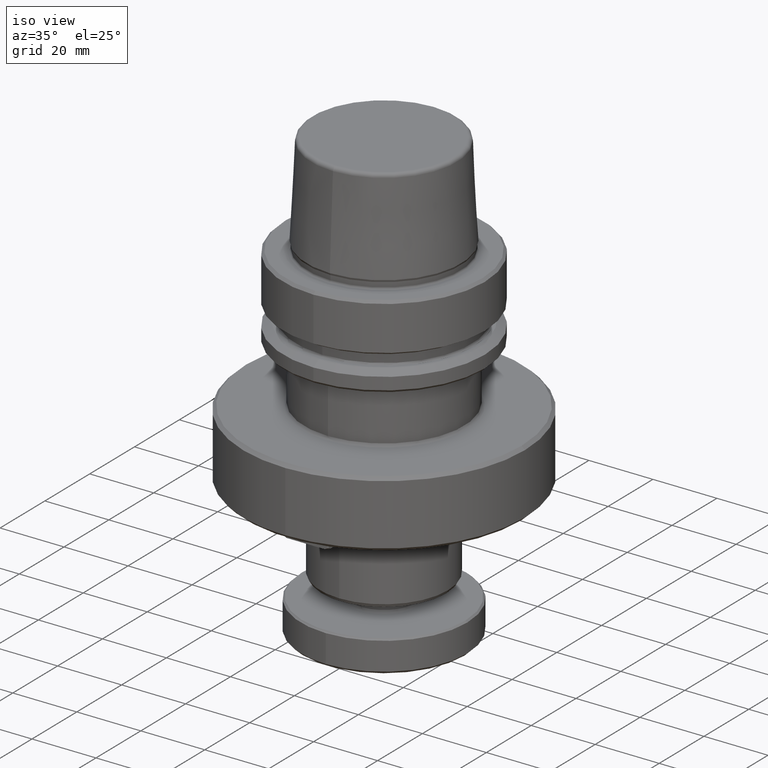
[diagram: clean part render]
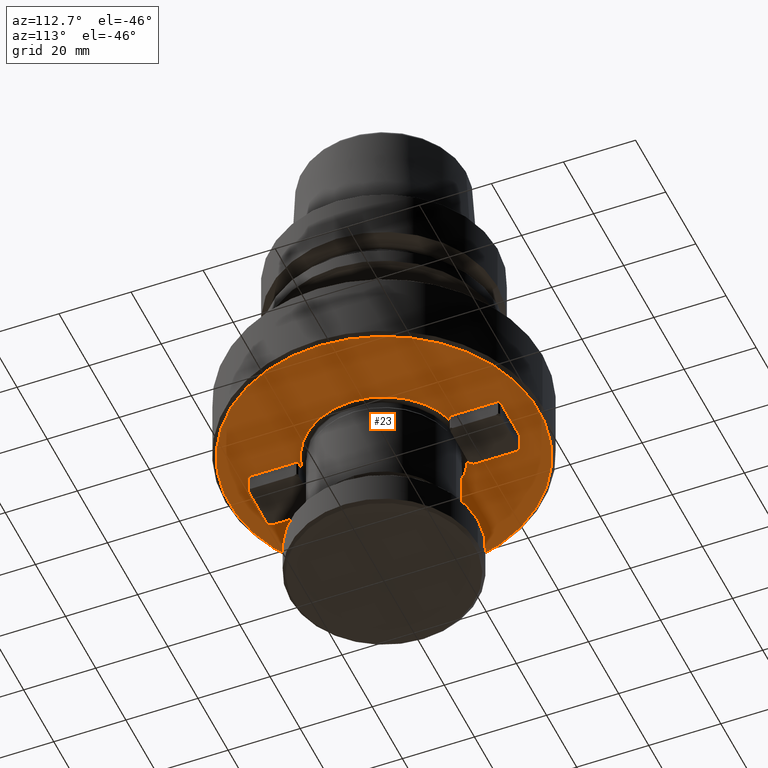
[diagram: tour spotlight — one face highlighted and labeled with its STEP entity id]
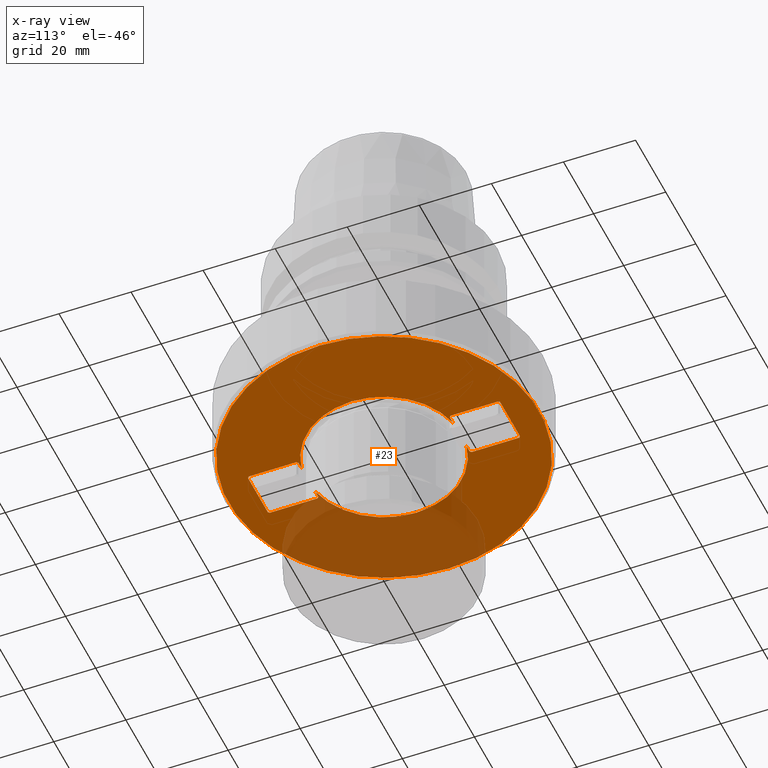
[diagram: x-ray of the same camera — body ghosted, this tour face saturated]
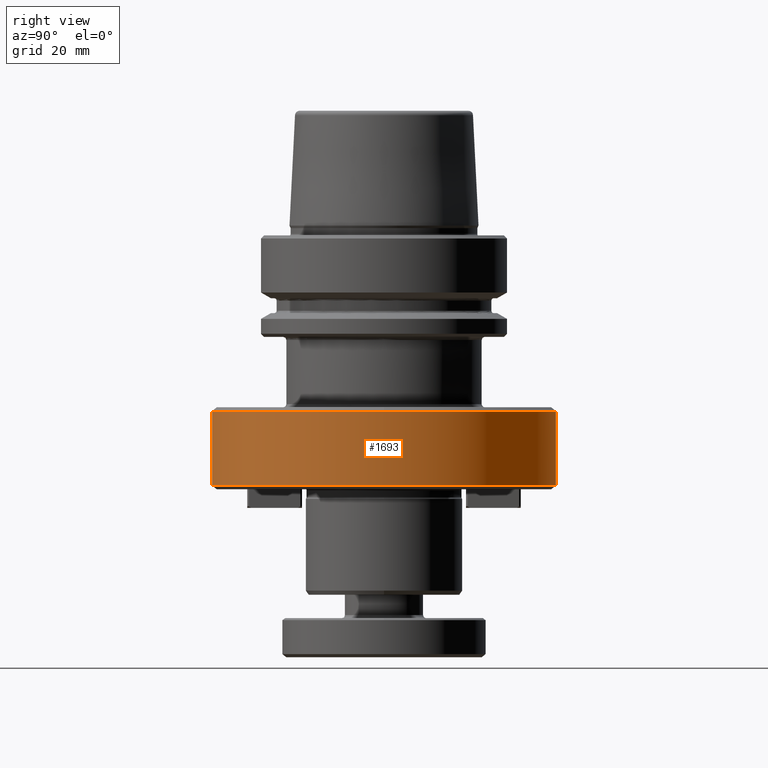
[diagram: tour spotlight — one face highlighted and labeled with its STEP entity id]
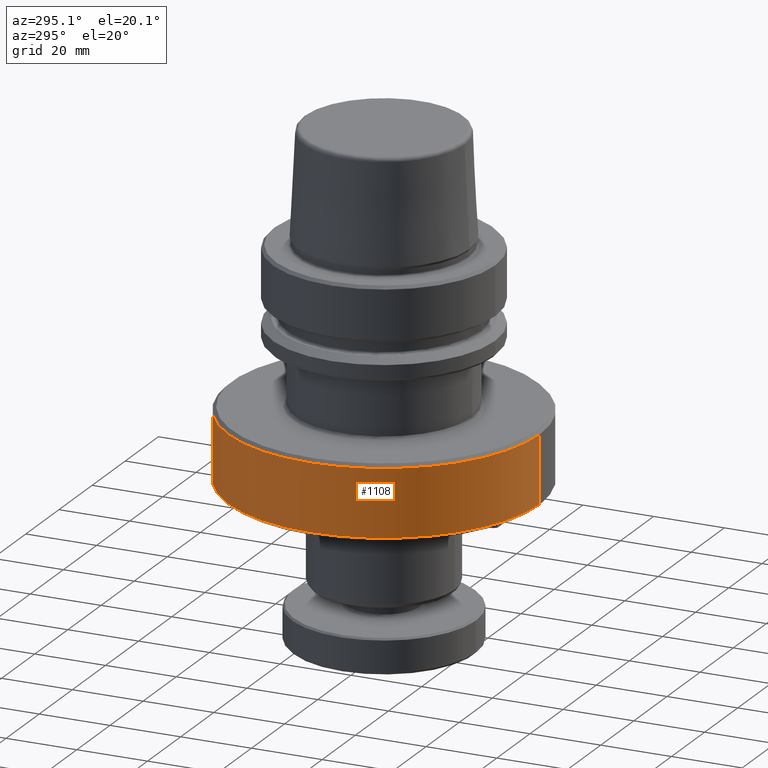
[diagram: tour spotlight — one face highlighted and labeled with its STEP entity id]
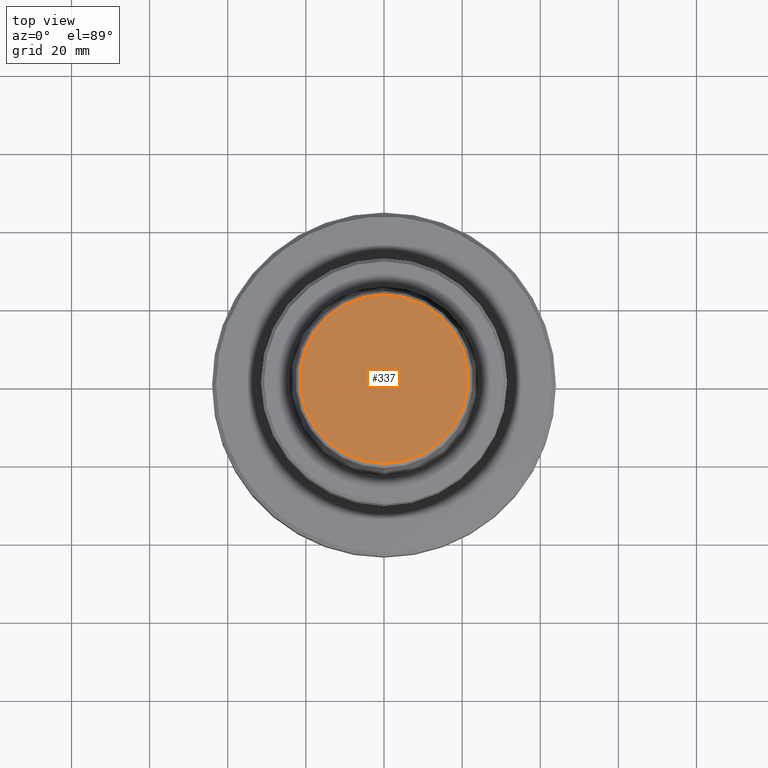
[diagram: tour spotlight — one face highlighted and labeled with its STEP entity id]
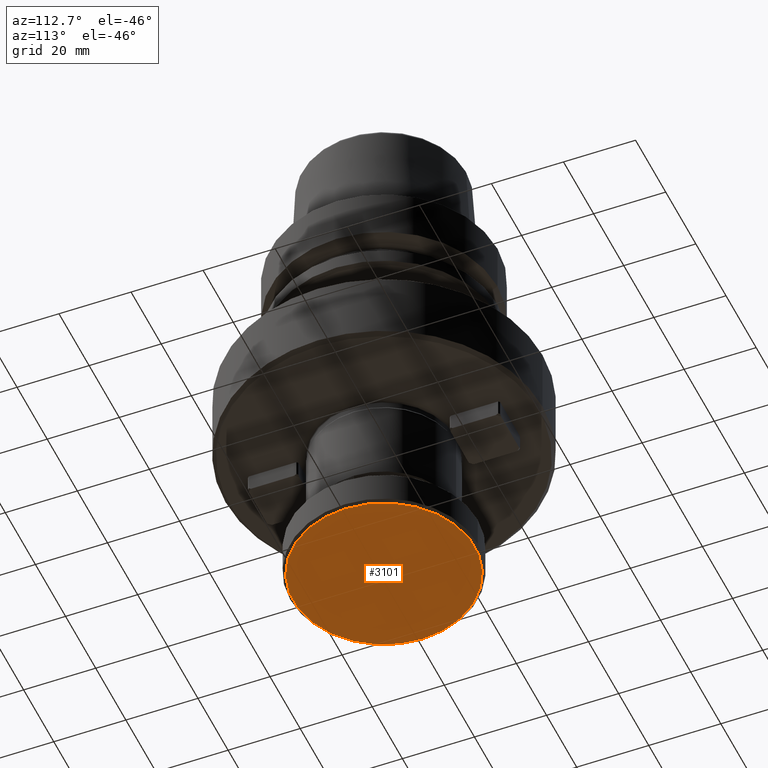
[diagram: tour spotlight — one face highlighted and labeled with its STEP entity id]
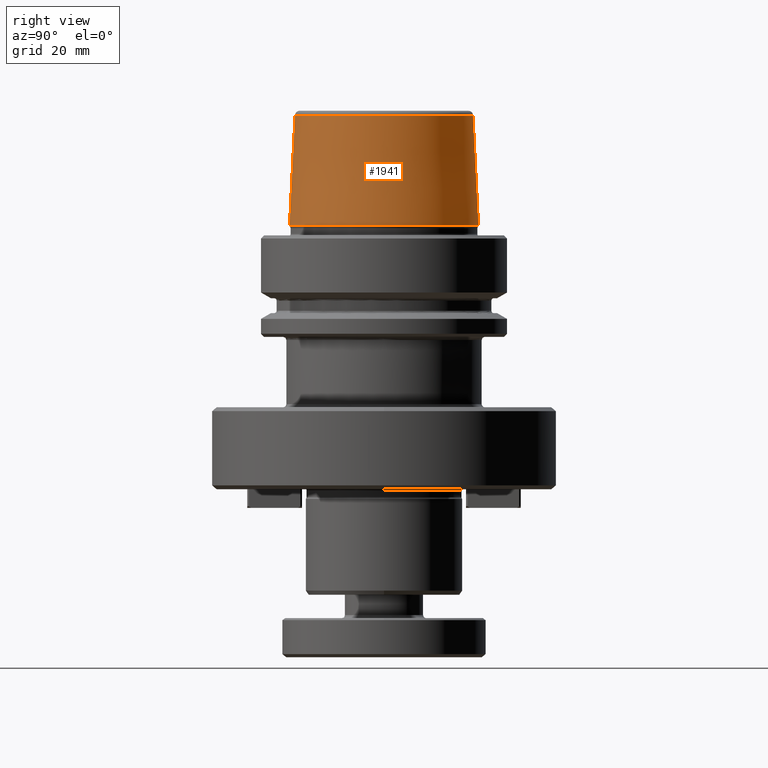
[diagram: tour spotlight — one face highlighted and labeled with its STEP entity id]
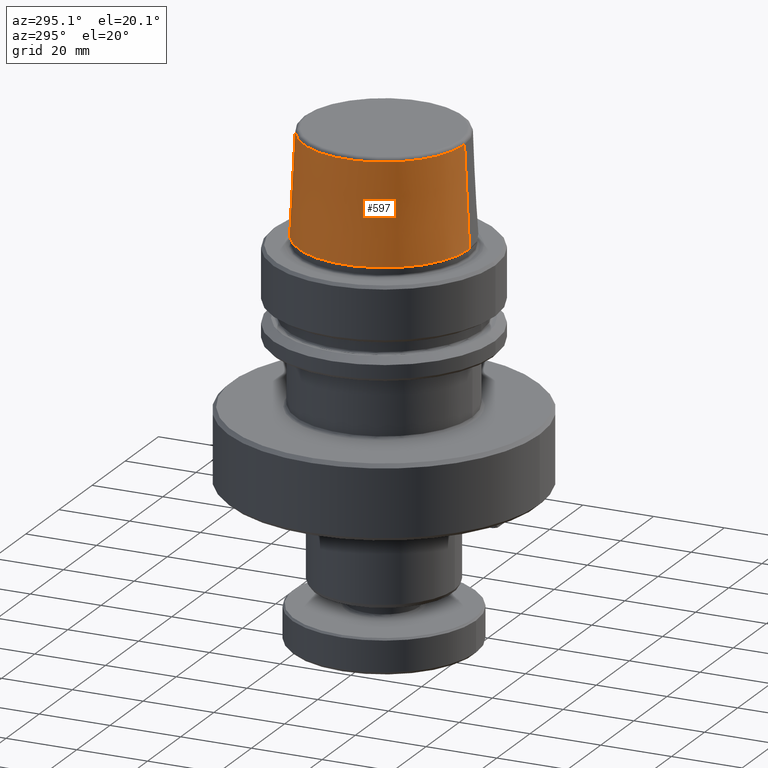
[diagram: tour spotlight — one face highlighted and labeled with its STEP entity id]
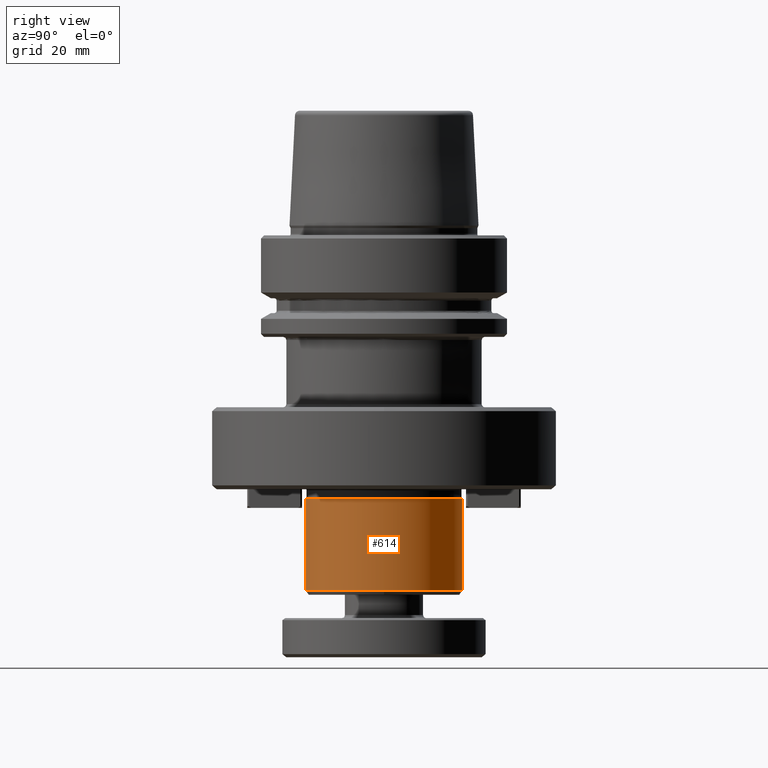
[diagram: tour spotlight — one face highlighted and labeled with its STEP entity id]
A machine part: a face-by-face anatomy tour. The part has 102 B-rep faces; the first image is the clean iso view, then the 8 largest visible faces are spotlighted one at a time (largest first), each with its STEP entity span.

Face 1 — auxiliary view, entity #23. An x-ray twin of the same camera follows (body ghosted, this face saturated) — the face is partly hidden behind the body. In plain terms, the highlighted planar face has unit normal (0, 0, -1).
Definition (entity closure, byte-faithful):
#13 = DIRECTION ( 'NONE',  ( -0.0000000000000000000, -1.000000000000000000, -5.566576359760684800E-018 ) ) ;
#21 = CARTESIAN_POINT ( 'NONE',  ( -4.515573053334458500, 21.00000000000000000, -65.00000000000000000 ) ) ;
#23 = ADVANCED_FACE ( 'NONE', ( #2924, #2289 ), #2173, .T. ) ;
#59 = CARTESIAN_POINT ( 'NONE',  ( 0.0000000000000000000, 21.00000000000000000, -65.00000000000000000 ) ) ;
#64 = EDGE_CURVE ( 'NONE', #2636, #226, #3506, .T. ) ;
#70 = DIRECTION ( 'NONE',  ( -0.0000000000000000000, -1.000000000000000000, -5.566576359760684800E-018 ) ) ;
#78 = CARTESIAN_POINT ( 'NONE',  ( -6.599999999999999600, -35.00000000000000000, -65.00000000000000000 ) ) ;
#94 = DIRECTION ( 'NONE',  ( 0.7071067811865483500, -0.7071067811865468000, -0.0000000000000000000 ) ) ;
#114 = EDGE_CURVE ( 'NONE', #2822, #2636, #2681, .T. ) ;
#122 = CIRCLE ( 'NONE', #1024, 21.48000000000000800 ) ;
#129 = VECTOR ( 'NONE', #2325, 1000.000000000000100 ) ;
#132 = VECTOR ( 'NONE', #3347, 1000.000000000000000 ) ;
#135 = DIRECTION ( 'NONE',  ( -0.0000000000000000000, -0.0000000000000000000, 1.000000000000000000 ) ) ;
#145 = VERTEX_POINT ( 'NONE', #1661 ) ;
#153 = DIRECTION ( 'NONE',  ( -0.0000000000000000000, -0.0000000000000000000, 1.000000000000000000 ) ) ;
#180 = CARTESIAN_POINT ( 'NONE',  ( -7.000000000000000000, -21.40000000000000200, -65.00000000000000000 ) ) ;
#187 = ORIENTED_EDGE ( 'NONE', *, *, #2824, .T. ) ;
#225 = EDGE_CURVE ( 'NONE', #2689, #1551, #302, .T. ) ;
#226 = VERTEX_POINT ( 'NONE', #3131 ) ;
#253 = VECTOR ( 'NONE', #2823, 1000.000000000000100 ) ;
#260 = CARTESIAN_POINT ( 'NONE',  ( -6.999999999999995600, 34.60000000000001600, -65.00000000000000000 ) ) ;
#289 = CARTESIAN_POINT ( 'NONE',  ( -7.000000000000000900, 43.00000000000000000, -65.00000000000000000 ) ) ;
#301 = EDGE_CURVE ( 'NONE', #145, #999, #122, .T. ) ;
#302 = LINE ( 'NONE', #3097, #3144 ) ;
#304 = CARTESIAN_POINT ( 'NONE',  ( 0.0000000000000000000, -20.99999999999999600, -65.00000000000000000 ) ) ;
#308 = CARTESIAN_POINT ( 'NONE',  ( 4.515573053334458500, 21.00000000000000000, -65.00000000000000000 ) ) ;
#328 = CARTESIAN_POINT ( 'NONE',  ( 0.0000000000000000000, -20.99999999999999600, -65.00000000000000000 ) ) ;
#334 = VECTOR ( 'NONE', #3004, 1000.000000000000000 ) ;
#348 = VECTOR ( 'NONE', #613, 1000.000000000000000 ) ;
#351 = EDGE_CURVE ( 'NONE', #1958, #2525, #1596, .T. ) ;
#375 = CARTESIAN_POINT ( 'NONE',  ( 6.599999999999999600, 35.00000000000000000, -65.00000000000000000 ) ) ;
#380 = ORIENTED_EDGE ( 'NONE', *, *, #114, .T. ) ;
#387 = VERTEX_POINT ( 'NONE', #1832 ) ;
#395 = LINE ( 'NONE', #1243, #129 ) ;
#415 = CARTESIAN_POINT ( 'NONE',  ( 0.0000000000000000000, 0.0000000000000000000, -65.00000000000000000 ) ) ;
#532 = AXIS2_PLACEMENT_3D ( 'NONE', #1360, #3011, #1375 ) ;
#549 = DIRECTION ( 'NONE',  ( -1.000000000000000000, 0.0000000000000000000, -0.0000000000000000000 ) ) ;
#567 = CARTESIAN_POINT ( 'NONE',  ( 7.000000000000000900, -21.40000000000000200, -65.00000000000000000 ) ) ;
#569 = LINE ( 'NONE', #2662, #3414 ) ;
#613 = DIRECTION ( 'NONE',  ( 1.000000000000000000, -0.0000000000000000000, 0.0000000000000000000 ) ) ;
#618 = CARTESIAN_POINT ( 'NONE',  ( -6.600000000000000500, -21.00000000000000000, -65.00000000000000000 ) ) ;
#621 = CIRCLE ( 'NONE', #2450, 21.48000000000001100 ) ;
#627 = CARTESIAN_POINT ( 'NONE',  ( 7.000000000000000000, 21.40000000000000200, -65.00000000000000000 ) ) ;
#628 = ORIENTED_EDGE ( 'NONE', *, *, #1894, .T. ) ;
#647 = VECTOR ( 'NONE', #2805, 1000.000000000000100 ) ;
#688 = EDGE_CURVE ( 'NONE', #2195, #2366, #2729, .T. ) ;
#703 = DIRECTION ( 'NONE',  ( 1.000000000000000000, 0.0000000000000000000, 0.0000000000000000000 ) ) ;
#735 = CARTESIAN_POINT ( 'NONE',  ( 6.599999999999999600, -35.00000000000000000, -65.00000000000000000 ) ) ;
#752 = EDGE_CURVE ( 'NONE', #3419, #1830, #621, .T. ) ;
#773 = LINE ( 'NONE', #735, #1414 ) ;
#801 = VERTEX_POINT ( 'NONE', #2187 ) ;
#804 = ORIENTED_EDGE ( 'NONE', *, *, #3252, .T. ) ;
#831 = VECTOR ( 'NONE', #1085, 1000.000000000000000 ) ;
#844 = DIRECTION ( 'NONE',  ( -0.7071067811865483500, 0.7071067811865468000, -0.0000000000000000000 ) ) ;
#888 = DIRECTION ( 'NONE',  ( -0.7071067811865489100, -0.7071067811865460200, -0.0000000000000000000 ) ) ;
#904 = EDGE_CURVE ( 'NONE', #999, #1742, #2853, .T. ) ;
#967 = ORIENTED_EDGE ( 'NONE', *, *, #64, .T. ) ;
#997 = DIRECTION ( 'NONE',  ( -0.0000000000000000000, -0.0000000000000000000, 1.000000000000000000 ) ) ;
#999 = VERTEX_POINT ( 'NONE', #2565 ) ;
#1001 = EDGE_CURVE ( 'NONE', #1551, #2105, #3027, .T. ) ;
#1002 = DIRECTION ( 'NONE',  ( 0.7071067811865489100, 0.7071067811865460200, -0.0000000000000000000 ) ) ;
#1022 = VERTEX_POINT ( 'NONE', #375 ) ;
#1024 = AXIS2_PLACEMENT_3D ( 'NONE', #1797, #135, #2068 ) ;
#1069 = VERTEX_POINT ( 'NONE', #3410 ) ;
#1085 = DIRECTION ( 'NONE',  ( 1.000000000000000000, -0.0000000000000000000, 0.0000000000000000000 ) ) ;
#1129 = ORIENTED_EDGE ( 'NONE', *, *, #2103, .T. ) ;
#1169 = LINE ( 'NONE', #59, #348 ) ;
#1243 = CARTESIAN_POINT ( 'NONE',  ( -6.599999999999999600, -35.00000000000000000, -65.00000000000000000 ) ) ;
#1272 = DIRECTION ( 'NONE',  ( -0.0000000000000000000, -0.0000000000000000000, -1.000000000000000000 ) ) ;
#1360 = CARTESIAN_POINT ( 'NONE',  ( 0.0000000000000000000, 43.00000000000000000, -65.00000000000000000 ) ) ;
#1363 = ORIENTED_EDGE ( 'NONE', *, *, #225, .T. ) ;
#1372 = LINE ( 'NONE', #2527, #647 ) ;
#1375 = DIRECTION ( 'NONE',  ( 0.0000000000000000000, 1.000000000000000000, 5.566576359760684800E-018 ) ) ;
#1414 = VECTOR ( 'NONE', #1002, 1000.000000000000100 ) ;
#1470 = CARTESIAN_POINT ( 'NONE',  ( -7.000000000000000900, 21.40000000000000200, -65.00000000000000000 ) ) ;
#1520 = CIRCLE ( 'NONE', #3467, 21.48000000000001100 ) ;
#1543 = DIRECTION ( 'NONE',  ( -0.0000000000000000000, -0.0000000000000000000, 1.000000000000000000 ) ) ;
#1551 = VERTEX_POINT ( 'NONE', #3000 ) ;
#1556 = EDGE_CURVE ( 'NONE', #2105, #2740, #3024, .T. ) ;
#1573 = VERTEX_POINT ( 'NONE', #3010 ) ;
#1574 = VECTOR ( 'NONE', #94, 1000.000000000000000 ) ;
#1590 = EDGE_CURVE ( 'NONE', #1022, #801, #2945, .T. ) ;
#1596 = CIRCLE ( 'NONE', #1758, 43.00000000000000000 ) ;
#1620 = CARTESIAN_POINT ( 'NONE',  ( 0.0000000000000000000, 21.00000000000000000, -65.00000000000000000 ) ) ;
#1661 = CARTESIAN_POINT ( 'NONE',  ( -21.48000000000001100, 0.0000000000000000000, -65.00000000000000000 ) ) ;
#1690 = CIRCLE ( 'NONE', #1800, 43.00000000000000000 ) ;
#1721 = CARTESIAN_POINT ( 'NONE',  ( -43.00000000000000000, 5.327213576290986800E-015, -65.00000000000000000 ) ) ;
#1742 = VERTEX_POINT ( 'NONE', #618 ) ;
#1758 = AXIS2_PLACEMENT_3D ( 'NONE', #2915, #1272, #3184 ) ;
#1797 = CARTESIAN_POINT ( 'NONE',  ( 0.0000000000000000000, 0.0000000000000000000, -65.00000000000000000 ) ) ;
#1800 = AXIS2_PLACEMENT_3D ( 'NONE', #415, #2342, #703 ) ;
#1803 = LINE ( 'NONE', #2100, #334 ) ;
#1830 = VERTEX_POINT ( 'NONE', #308 ) ;
#1832 = CARTESIAN_POINT ( 'NONE',  ( 6.999999999999995600, -34.60000000000001600, -65.00000000000000000 ) ) ;
#1864 = ORIENTED_EDGE ( 'NONE', *, *, #2058, .T. ) ;
#1894 = EDGE_CURVE ( 'NONE', #387, #2822, #2422, .T. ) ;
#1897 = ORIENTED_EDGE ( 'NONE', *, *, #1001, .T. ) ;
#1915 = CARTESIAN_POINT ( 'NONE',  ( 6.599999999999999600, -35.00000000000000000, -65.00000000000000000 ) ) ;
#1958 = VERTEX_POINT ( 'NONE', #1721 ) ;
#1970 = CARTESIAN_POINT ( 'NONE',  ( 0.0000000000000000000, 0.0000000000000000000, -65.00000000000000000 ) ) ;
#1984 = CARTESIAN_POINT ( 'NONE',  ( -6.599999999999999600, 35.00000000000000000, -65.00000000000000000 ) ) ;
#1995 = ORIENTED_EDGE ( 'NONE', *, *, #351, .T. ) ;
#2003 = DIRECTION ( 'NONE',  ( 0.0000000000000000000, 1.000000000000000000, 5.566576359760684800E-018 ) ) ;
#2006 = VERTEX_POINT ( 'NONE', #2055 ) ;
#2023 = ORIENTED_EDGE ( 'NONE', *, *, #2952, .T. ) ;
#2025 = CARTESIAN_POINT ( 'NONE',  ( 7.000000000000000900, 43.00000000000000000, -65.00000000000000000 ) ) ;
#2035 = EDGE_CURVE ( 'NONE', #2525, #1958, #1690, .T. ) ;
#2055 = CARTESIAN_POINT ( 'NONE',  ( 7.000000000000000000, 21.40000000000000200, -65.00000000000000000 ) ) ;
#2058 = EDGE_CURVE ( 'NONE', #2366, #3324, #395, .T. ) ;
#2068 = DIRECTION ( 'NONE',  ( -1.000000000000000000, 0.0000000000000000000, 0.0000000000000000000 ) ) ;
#2075 = VECTOR ( 'NONE', #13, 1000.000000000000000 ) ;
#2082 = CARTESIAN_POINT ( 'NONE',  ( 21.48000000000001100, 2.630541324568516100E-015, -65.00000000000000000 ) ) ;
#2089 = EDGE_LOOP ( 'NONE', ( #1897, #2276, #1129, #2389, #2112, #2992, #2393, #1864, #3565, #2862, #628, #380, #967, #3270, #2348, #3238, #187, #2023, #804, #3038, #3239, #1363 ) ) ;
#2090 = DIRECTION ( 'NONE',  ( -1.000000000000000000, 8.881784197001252300E-016, 0.0000000000000000000 ) ) ;
#2100 = CARTESIAN_POINT ( 'NONE',  ( 0.0000000000000000000, -35.00000000000000700, -65.00000000000000000 ) ) ;
#2103 = EDGE_CURVE ( 'NONE', #2740, #145, #2977, .T. ) ;
#2105 = VERTEX_POINT ( 'NONE', #3171 ) ;
#2107 = EDGE_CURVE ( 'NONE', #226, #3419, #1520, .T. ) ;
#2112 = ORIENTED_EDGE ( 'NONE', *, *, #904, .T. ) ;
#2118 = VECTOR ( 'NONE', #2493, 1000.000000000000000 ) ;
#2173 = PLANE ( 'NONE',  #532 ) ;
#2187 = CARTESIAN_POINT ( 'NONE',  ( -6.599999999999998800, 35.00000000000000000, -65.00000000000000000 ) ) ;
#2195 = VERTEX_POINT ( 'NONE', #180 ) ;
#2207 = VECTOR ( 'NONE', #549, 1000.000000000000000 ) ;
#2276 = ORIENTED_EDGE ( 'NONE', *, *, #1556, .T. ) ;
#2289 = FACE_OUTER_BOUND ( 'NONE', #3074, .T. ) ;
#2325 = DIRECTION ( 'NONE',  ( 0.7071067811865489100, -0.7071067811865460200, -0.0000000000000000000 ) ) ;
#2342 = DIRECTION ( 'NONE',  ( -0.0000000000000000000, -0.0000000000000000000, -1.000000000000000000 ) ) ;
#2348 = ORIENTED_EDGE ( 'NONE', *, *, #752, .T. ) ;
#2366 = VERTEX_POINT ( 'NONE', #3457 ) ;
#2389 = ORIENTED_EDGE ( 'NONE', *, *, #301, .T. ) ;
#2393 = ORIENTED_EDGE ( 'NONE', *, *, #688, .T. ) ;
#2407 = CARTESIAN_POINT ( 'NONE',  ( 43.00000000000000000, 0.0000000000000000000, -65.00000000000000000 ) ) ;
#2422 = LINE ( 'NONE', #3361, #132 ) ;
#2450 = AXIS2_PLACEMENT_3D ( 'NONE', #1970, #153, #2090 ) ;
#2452 = LINE ( 'NONE', #627, #253 ) ;
#2460 = EDGE_CURVE ( 'NONE', #1742, #2195, #569, .T. ) ;
#2493 = DIRECTION ( 'NONE',  ( -1.000000000000000000, 0.0000000000000000000, -0.0000000000000000000 ) ) ;
#2525 = VERTEX_POINT ( 'NONE', #2407 ) ;
#2527 = CARTESIAN_POINT ( 'NONE',  ( 6.599999999999999600, 35.00000000000000000, -65.00000000000000000 ) ) ;
#2565 = CARTESIAN_POINT ( 'NONE',  ( -4.515573053334453100, -20.99999999999999600, -65.00000000000000000 ) ) ;
#2636 = VERTEX_POINT ( 'NONE', #2997 ) ;
#2650 = CARTESIAN_POINT ( 'NONE',  ( 0.0000000000000000000, 0.0000000000000000000, -65.00000000000000000 ) ) ;
#2655 = VERTEX_POINT ( 'NONE', #1915 ) ;
#2662 = CARTESIAN_POINT ( 'NONE',  ( -7.000000000000000000, -21.40000000000000200, -65.00000000000000000 ) ) ;
#2681 = LINE ( 'NONE', #567, #3316 ) ;
#2689 = VERTEX_POINT ( 'NONE', #260 ) ;
#2729 = LINE ( 'NONE', #289, #2075 ) ;
#2740 = VERTEX_POINT ( 'NONE', #21 ) ;
#2790 = VECTOR ( 'NONE', #2003, 1000.000000000000000 ) ;
#2805 = DIRECTION ( 'NONE',  ( -0.7071067811865489100, 0.7071067811865460200, -0.0000000000000000000 ) ) ;
#2811 = CARTESIAN_POINT ( 'NONE',  ( 7.000000000000000900, -21.40000000000000200, -65.00000000000000000 ) ) ;
#2819 = EDGE_CURVE ( 'NONE', #1830, #1069, #1169, .T. ) ;
#2822 = VERTEX_POINT ( 'NONE', #2811 ) ;
#2823 = DIRECTION ( 'NONE',  ( 0.7071067811865474600, 0.7071067811865474600, -0.0000000000000000000 ) ) ;
#2824 = EDGE_CURVE ( 'NONE', #1069, #2006, #2452, .T. ) ;
#2853 = LINE ( 'NONE', #328, #3595 ) ;
#2862 = ORIENTED_EDGE ( 'NONE', *, *, #3452, .T. ) ;
#2915 = CARTESIAN_POINT ( 'NONE',  ( 0.0000000000000000000, 0.0000000000000000000, -65.00000000000000000 ) ) ;
#2922 = DIRECTION ( 'NONE',  ( -1.000000000000000000, 8.881784197001252300E-016, 0.0000000000000000000 ) ) ;
#2924 = FACE_BOUND ( 'NONE', #2089, .T. ) ;
#2945 = LINE ( 'NONE', #3289, #2207 ) ;
#2952 = EDGE_CURVE ( 'NONE', #2006, #1573, #3532, .T. ) ;
#2977 = CIRCLE ( 'NONE', #3264, 21.48000000000000800 ) ;
#2992 = ORIENTED_EDGE ( 'NONE', *, *, #2460, .T. ) ;
#2997 = CARTESIAN_POINT ( 'NONE',  ( 6.599999999999998800, -21.00000000000000000, -65.00000000000000000 ) ) ;
#3000 = CARTESIAN_POINT ( 'NONE',  ( -7.000000000000000900, 21.40000000000000200, -65.00000000000000000 ) ) ;
#3004 = DIRECTION ( 'NONE',  ( 1.000000000000000000, -0.0000000000000000000, 0.0000000000000000000 ) ) ;
#3010 = CARTESIAN_POINT ( 'NONE',  ( 6.999999999999995600, 34.60000000000001600, -65.00000000000000000 ) ) ;
#3011 = DIRECTION ( 'NONE',  ( 0.0000000000000000000, 5.566576359760684800E-018, -1.000000000000000000 ) ) ;
#3024 = LINE ( 'NONE', #1620, #831 ) ;
#3027 = LINE ( 'NONE', #1470, #1574 ) ;
#3038 = ORIENTED_EDGE ( 'NONE', *, *, #1590, .T. ) ;
#3074 = EDGE_LOOP ( 'NONE', ( #3515, #1995 ) ) ;
#3077 = EDGE_CURVE ( 'NONE', #3324, #2655, #1803, .T. ) ;
#3097 = CARTESIAN_POINT ( 'NONE',  ( -6.999999999999998200, 43.00000000000000000, -65.00000000000000000 ) ) ;
#3131 = CARTESIAN_POINT ( 'NONE',  ( 4.515573053334465600, -20.99999999999999600, -65.00000000000000000 ) ) ;
#3144 = VECTOR ( 'NONE', #70, 1000.000000000000000 ) ;
#3171 = CARTESIAN_POINT ( 'NONE',  ( -6.599999999999998800, 21.00000000000000000, -65.00000000000000000 ) ) ;
#3181 = CARTESIAN_POINT ( 'NONE',  ( 0.0000000000000000000, 0.0000000000000000000, -65.00000000000000000 ) ) ;
#3184 = DIRECTION ( 'NONE',  ( 1.000000000000000000, 0.0000000000000000000, 0.0000000000000000000 ) ) ;
#3204 = DIRECTION ( 'NONE',  ( -0.7071067811865474600, -0.7071067811865474600, -0.0000000000000000000 ) ) ;
#3238 = ORIENTED_EDGE ( 'NONE', *, *, #2819, .T. ) ;
#3239 = ORIENTED_EDGE ( 'NONE', *, *, #3272, .T. ) ;
#3252 = EDGE_CURVE ( 'NONE', #1573, #1022, #1372, .T. ) ;
#3264 = AXIS2_PLACEMENT_3D ( 'NONE', #3181, #1543, #3473 ) ;
#3270 = ORIENTED_EDGE ( 'NONE', *, *, #2107, .T. ) ;
#3272 = EDGE_CURVE ( 'NONE', #801, #2689, #3489, .T. ) ;
#3289 = CARTESIAN_POINT ( 'NONE',  ( 0.0000000000000000000, 35.00000000000000000, -65.00000000000000000 ) ) ;
#3316 = VECTOR ( 'NONE', #844, 1000.000000000000000 ) ;
#3324 = VERTEX_POINT ( 'NONE', #78 ) ;
#3347 = DIRECTION ( 'NONE',  ( 0.0000000000000000000, 1.000000000000000000, 5.566576359760684800E-018 ) ) ;
#3351 = DIRECTION ( 'NONE',  ( -1.000000000000000000, 0.0000000000000000000, -0.0000000000000000000 ) ) ;
#3361 = CARTESIAN_POINT ( 'NONE',  ( 6.999999999999998200, 43.00000000000000000, -65.00000000000000000 ) ) ;
#3393 = VECTOR ( 'NONE', #888, 1000.000000000000100 ) ;
#3410 = CARTESIAN_POINT ( 'NONE',  ( 6.600000000000000500, 21.00000000000000000, -65.00000000000000000 ) ) ;
#3414 = VECTOR ( 'NONE', #3204, 1000.000000000000100 ) ;
#3419 = VERTEX_POINT ( 'NONE', #2082 ) ;
#3452 = EDGE_CURVE ( 'NONE', #2655, #387, #773, .T. ) ;
#3457 = CARTESIAN_POINT ( 'NONE',  ( -6.999999999999995600, -34.60000000000002300, -65.00000000000000000 ) ) ;
#3467 = AXIS2_PLACEMENT_3D ( 'NONE', #2650, #997, #2922 ) ;
#3473 = DIRECTION ( 'NONE',  ( -1.000000000000000000, 1.776356839400250500E-015, 0.0000000000000000000 ) ) ;
#3489 = LINE ( 'NONE', #1984, #3393 ) ;
#3506 = LINE ( 'NONE', #304, #2118 ) ;
#3515 = ORIENTED_EDGE ( 'NONE', *, *, #2035, .T. ) ;
#3532 = LINE ( 'NONE', #2025, #2790 ) ;
#3565 = ORIENTED_EDGE ( 'NONE', *, *, #3077, .T. ) ;
#3595 = VECTOR ( 'NONE', #3351, 1000.000000000000000 ) ;

Face 2 — right view, entity #1693. In plain terms, the highlighted cylindrical surface (partial cylindrical patch) has radius 44 mm, axis along (0, 0, -1).
Definition (entity closure, byte-faithful):
#27 = DIRECTION ( 'NONE',  ( 0.0000000000000000000, 5.566576359760684800E-018, -1.000000000000000000 ) ) ;
#169 = ORIENTED_EDGE ( 'NONE', *, *, #3139, .F. ) ;
#195 = DIRECTION ( 'NONE',  ( 0.0000000000000000000, -1.000000000000000000, 0.0000000000000000000 ) ) ;
#313 = CIRCLE ( 'NONE', #2602, 44.00000000000000000 ) ;
#442 = EDGE_CURVE ( 'NONE', #2161, #1657, #1944, .T. ) ;
#566 = CARTESIAN_POINT ( 'NONE',  ( 0.0000000000000000000, 44.00000000000000000, -92.00000000000000000 ) ) ;
#653 = VERTEX_POINT ( 'NONE', #829 ) ;
#754 = CARTESIAN_POINT ( 'NONE',  ( 0.0000000000000000000, 44.00000000000000000, -45.00000000000001400 ) ) ;
#829 = CARTESIAN_POINT ( 'NONE',  ( 44.00000000000000000, 5.388445916248353600E-015, -45.00000000000001400 ) ) ;
#863 = DIRECTION ( 'NONE',  ( 0.0000000000000000000, 5.566576359760684800E-018, -1.000000000000000000 ) ) ;
#890 = VECTOR ( 'NONE', #2766, 1000.000000000000000 ) ;
#971 = EDGE_CURVE ( 'NONE', #1657, #2132, #1014, .T. ) ;
#1014 = CIRCLE ( 'NONE', #2067, 44.00000000000000000 ) ;
#1054 = ORIENTED_EDGE ( 'NONE', *, *, #1786, .T. ) ;
#1096 = CARTESIAN_POINT ( 'NONE',  ( 44.00000000000000700, 0.0000000000000000000, -63.99999999999998600 ) ) ;
#1119 = AXIS2_PLACEMENT_3D ( 'NONE', #3060, #1423, #3343 ) ;
#1121 = DIRECTION ( 'NONE',  ( 0.0000000000000000000, 1.000000000000000000, 0.0000000000000000000 ) ) ;
#1127 = DIRECTION ( 'NONE',  ( 0.0000000000000000000, 5.566576359760684800E-018, -1.000000000000000000 ) ) ;
#1183 = CARTESIAN_POINT ( 'NONE',  ( 0.0000000000000000000, 2.115299016709060100E-016, -63.99999999999998600 ) ) ;
#1287 = VECTOR ( 'NONE', #863, 1000.000000000000000 ) ;
#1313 = FACE_OUTER_BOUND ( 'NONE', #2735, .T. ) ;
#1317 = AXIS2_PLACEMENT_3D ( 'NONE', #3326, #27, #1121 ) ;
#1423 = DIRECTION ( 'NONE',  ( 0.0000000000000000000, 5.566576359760684800E-018, -1.000000000000000000 ) ) ;
#1439 = CARTESIAN_POINT ( 'NONE',  ( 5.388445916248353600E-015, -44.00000000000000000, -92.00000000000000000 ) ) ;
#1461 = DIRECTION ( 'NONE',  ( -8.881784197001252300E-016, -1.000000000000000000, 0.0000000000000000000 ) ) ;
#1478 = ORIENTED_EDGE ( 'NONE', *, *, #1711, .T. ) ;
#1657 = VERTEX_POINT ( 'NONE', #1096 ) ;
#1693 = ADVANCED_FACE ( 'NONE', ( #1313 ), #2295, .T. ) ;
#1711 = EDGE_CURVE ( 'NONE', #653, #3278, #1950, .T. ) ;
#1786 = EDGE_CURVE ( 'NONE', #2474, #653, #313, .T. ) ;
#1811 = ORIENTED_EDGE ( 'NONE', *, *, #442, .F. ) ;
#1827 = CARTESIAN_POINT ( 'NONE',  ( 0.0000000000000000000, 44.00000000000000000, -63.99999999999998600 ) ) ;
#1853 = DIRECTION ( 'NONE',  ( -0.0000000000000000000, 5.566576359760684800E-018, -1.000000000000000000 ) ) ;
#1944 = CIRCLE ( 'NONE', #3043, 44.00000000000000000 ) ;
#1950 = CIRCLE ( 'NONE', #1119, 44.00000000000000000 ) ;
#1966 = ORIENTED_EDGE ( 'NONE', *, *, #971, .F. ) ;
#2067 = AXIS2_PLACEMENT_3D ( 'NONE', #1183, #3105, #1461 ) ;
#2132 = VERTEX_POINT ( 'NONE', #2367 ) ;
#2161 = VERTEX_POINT ( 'NONE', #1827 ) ;
#2295 = CYLINDRICAL_SURFACE ( 'NONE', #1317, 44.00000000000000000 ) ;
#2360 = LINE ( 'NONE', #566, #890 ) ;
#2367 = CARTESIAN_POINT ( 'NONE',  ( 5.388445916248353600E-015, -44.00000000000000000, -63.99999999999998600 ) ) ;
#2474 = VERTEX_POINT ( 'NONE', #754 ) ;
#2535 = CARTESIAN_POINT ( 'NONE',  ( 5.388445916248353600E-015, -44.00000000000000000, -45.00000000000001400 ) ) ;
#2602 = AXIS2_PLACEMENT_3D ( 'NONE', #2780, #1127, #3050 ) ;
#2735 = EDGE_LOOP ( 'NONE', ( #1478, #3484, #1966, #1811, #169, #1054 ) ) ;
#2747 = LINE ( 'NONE', #1439, #1287 ) ;
#2766 = DIRECTION ( 'NONE',  ( 0.0000000000000000000, 5.566576359760684800E-018, -1.000000000000000000 ) ) ;
#2780 = CARTESIAN_POINT ( 'NONE',  ( 0.0000000000000000000, 1.057649508354530300E-016, -45.00000000000001400 ) ) ;
#3043 = AXIS2_PLACEMENT_3D ( 'NONE', #3511, #1853, #195 ) ;
#3050 = DIRECTION ( 'NONE',  ( 0.0000000000000000000, 1.000000000000000000, 0.0000000000000000000 ) ) ;
#3060 = CARTESIAN_POINT ( 'NONE',  ( 0.0000000000000000000, 1.057649508354530300E-016, -45.00000000000001400 ) ) ;
#3105 = DIRECTION ( 'NONE',  ( -0.0000000000000000000, 5.566576359760684800E-018, -1.000000000000000000 ) ) ;
#3139 = EDGE_CURVE ( 'NONE', #2474, #2161, #2360, .T. ) ;
#3269 = EDGE_CURVE ( 'NONE', #3278, #2132, #2747, .T. ) ;
#3278 = VERTEX_POINT ( 'NONE', #2535 ) ;
#3326 = CARTESIAN_POINT ( 'NONE',  ( 0.0000000000000000000, 3.673940397442051500E-016, -92.00000000000000000 ) ) ;
#3343 = DIRECTION ( 'NONE',  ( 0.0000000000000000000, 1.000000000000000000, 0.0000000000000000000 ) ) ;
#3484 = ORIENTED_EDGE ( 'NONE', *, *, #3269, .T. ) ;
#3511 = CARTESIAN_POINT ( 'NONE',  ( 0.0000000000000000000, 2.115299016709060100E-016, -63.99999999999998600 ) ) ;

Face 3 — auxiliary view, entity #1108. In plain terms, the highlighted cylindrical surface (partial cylindrical patch) has radius 44 mm, axis along (0, 0, -1).
Definition (entity closure, byte-faithful):
#31 = DIRECTION ( 'NONE',  ( -0.0000000000000000000, 5.566576359760684800E-018, -1.000000000000000000 ) ) ;
#146 = AXIS2_PLACEMENT_3D ( 'NONE', #3438, #1507, #1234 ) ;
#233 = EDGE_CURVE ( 'NONE', #3278, #556, #2496, .T. ) ;
#293 = EDGE_CURVE ( 'NONE', #556, #2474, #3057, .T. ) ;
#396 = ORIENTED_EDGE ( 'NONE', *, *, #3139, .T. ) ;
#465 = AXIS2_PLACEMENT_3D ( 'NONE', #2331, #695, #2613 ) ;
#556 = VERTEX_POINT ( 'NONE', #2134 ) ;
#566 = CARTESIAN_POINT ( 'NONE',  ( 0.0000000000000000000, 44.00000000000000000, -92.00000000000000000 ) ) ;
#671 = CARTESIAN_POINT ( 'NONE',  ( 0.0000000000000000000, 1.057649508354530300E-016, -45.00000000000001400 ) ) ;
#695 = DIRECTION ( 'NONE',  ( 0.0000000000000000000, 5.566576359760684800E-018, -1.000000000000000000 ) ) ;
#754 = CARTESIAN_POINT ( 'NONE',  ( 0.0000000000000000000, 44.00000000000000000, -45.00000000000001400 ) ) ;
#863 = DIRECTION ( 'NONE',  ( 0.0000000000000000000, 5.566576359760684800E-018, -1.000000000000000000 ) ) ;
#879 = ORIENTED_EDGE ( 'NONE', *, *, #293, .T. ) ;
#890 = VECTOR ( 'NONE', #2766, 1000.000000000000000 ) ;
#922 = ORIENTED_EDGE ( 'NONE', *, *, #2846, .F. ) ;
#935 = DIRECTION ( 'NONE',  ( 0.0000000000000000000, 1.000000000000000000, 0.0000000000000000000 ) ) ;
#1012 = CARTESIAN_POINT ( 'NONE',  ( -44.00000000000000700, 5.388445916248354400E-015, -63.99999999999998600 ) ) ;
#1108 = ADVANCED_FACE ( 'NONE', ( #1402 ), #1316, .T. ) ;
#1168 = ORIENTED_EDGE ( 'NONE', *, *, #233, .T. ) ;
#1186 = DIRECTION ( 'NONE',  ( -0.0000000000000000000, 5.566576359760684800E-018, -1.000000000000000000 ) ) ;
#1234 = DIRECTION ( 'NONE',  ( 0.0000000000000000000, 1.000000000000000000, 0.0000000000000000000 ) ) ;
#1287 = VECTOR ( 'NONE', #863, 1000.000000000000000 ) ;
#1316 = CYLINDRICAL_SURFACE ( 'NONE', #146, 44.00000000000000000 ) ;
#1342 = AXIS2_PLACEMENT_3D ( 'NONE', #2836, #1186, #3111 ) ;
#1381 = VERTEX_POINT ( 'NONE', #1012 ) ;
#1402 = FACE_OUTER_BOUND ( 'NONE', #2828, .T. ) ;
#1439 = CARTESIAN_POINT ( 'NONE',  ( 5.388445916248353600E-015, -44.00000000000000000, -92.00000000000000000 ) ) ;
#1507 = DIRECTION ( 'NONE',  ( 0.0000000000000000000, 5.566576359760684800E-018, -1.000000000000000000 ) ) ;
#1584 = CIRCLE ( 'NONE', #1342, 44.00000000000000000 ) ;
#1679 = CARTESIAN_POINT ( 'NONE',  ( 0.0000000000000000000, 2.115299016709060100E-016, -63.99999999999998600 ) ) ;
#1704 = ORIENTED_EDGE ( 'NONE', *, *, #3269, .F. ) ;
#1804 = EDGE_CURVE ( 'NONE', #2132, #1381, #3241, .T. ) ;
#1827 = CARTESIAN_POINT ( 'NONE',  ( 0.0000000000000000000, 44.00000000000000000, -63.99999999999998600 ) ) ;
#1960 = DIRECTION ( 'NONE',  ( 0.0000000000000000000, -1.000000000000000000, 0.0000000000000000000 ) ) ;
#2132 = VERTEX_POINT ( 'NONE', #2367 ) ;
#2134 = CARTESIAN_POINT ( 'NONE',  ( -44.00000000000000000, 0.0000000000000000000, -45.00000000000001400 ) ) ;
#2161 = VERTEX_POINT ( 'NONE', #1827 ) ;
#2331 = CARTESIAN_POINT ( 'NONE',  ( 0.0000000000000000000, 1.057649508354530300E-016, -45.00000000000001400 ) ) ;
#2360 = LINE ( 'NONE', #566, #890 ) ;
#2367 = CARTESIAN_POINT ( 'NONE',  ( 5.388445916248353600E-015, -44.00000000000000000, -63.99999999999998600 ) ) ;
#2474 = VERTEX_POINT ( 'NONE', #754 ) ;
#2496 = CIRCLE ( 'NONE', #3495, 44.00000000000000000 ) ;
#2535 = CARTESIAN_POINT ( 'NONE',  ( 5.388445916248353600E-015, -44.00000000000000000, -45.00000000000001400 ) ) ;
#2584 = DIRECTION ( 'NONE',  ( 0.0000000000000000000, 5.566576359760684800E-018, -1.000000000000000000 ) ) ;
#2613 = DIRECTION ( 'NONE',  ( 0.0000000000000000000, 1.000000000000000000, 0.0000000000000000000 ) ) ;
#2747 = LINE ( 'NONE', #1439, #1287 ) ;
#2766 = DIRECTION ( 'NONE',  ( 0.0000000000000000000, 5.566576359760684800E-018, -1.000000000000000000 ) ) ;
#2786 = AXIS2_PLACEMENT_3D ( 'NONE', #1679, #31, #1960 ) ;
#2828 = EDGE_LOOP ( 'NONE', ( #1704, #1168, #879, #396, #922, #3497 ) ) ;
#2836 = CARTESIAN_POINT ( 'NONE',  ( 0.0000000000000000000, 2.115299016709060100E-016, -63.99999999999998600 ) ) ;
#2846 = EDGE_CURVE ( 'NONE', #1381, #2161, #1584, .T. ) ;
#3057 = CIRCLE ( 'NONE', #465, 44.00000000000000000 ) ;
#3111 = DIRECTION ( 'NONE',  ( 0.0000000000000000000, -1.000000000000000000, 0.0000000000000000000 ) ) ;
#3139 = EDGE_CURVE ( 'NONE', #2474, #2161, #2360, .T. ) ;
#3241 = CIRCLE ( 'NONE', #2786, 44.00000000000000000 ) ;
#3269 = EDGE_CURVE ( 'NONE', #3278, #2132, #2747, .T. ) ;
#3278 = VERTEX_POINT ( 'NONE', #2535 ) ;
#3438 = CARTESIAN_POINT ( 'NONE',  ( 0.0000000000000000000, 3.673940397442051500E-016, -92.00000000000000000 ) ) ;
#3495 = AXIS2_PLACEMENT_3D ( 'NONE', #671, #2584, #935 ) ;
#3497 = ORIENTED_EDGE ( 'NONE', *, *, #1804, .F. ) ;

Face 4 — top view, entity #337. In plain terms, the highlighted planar face has unit normal (0, -0, -1).
Definition (entity closure, byte-faithful):
#147 = DIRECTION ( 'NONE',  ( 0.0000000000000000000, -1.342951762274862300E-018, -1.000000000000000000 ) ) ;
#324 = ORIENTED_EDGE ( 'NONE', *, *, #679, .T. ) ;
#337 = ADVANCED_FACE ( 'NONE', ( #2155 ), #1809, .F. ) ;
#477 = CARTESIAN_POINT ( 'NONE',  ( 2.716303250904411500E-015, 21.58105086660056000, 31.90000000000669900 ) ) ;
#502 = VERTEX_POINT ( 'NONE', #477 ) ;
#679 = EDGE_CURVE ( 'NONE', #502, #2190, #709, .T. ) ;
#709 = CIRCLE ( 'NONE', #2093, 21.58105086660056000 ) ;
#852 = CARTESIAN_POINT ( 'NONE',  ( 0.0000000000000000000, -6.793463105667404900E-017, 31.90000000000669900 ) ) ;
#1124 = DIRECTION ( 'NONE',  ( 0.0000000000000000000, -1.000000000000000000, 0.0000000000000000000 ) ) ;
#1176 = EDGE_CURVE ( 'NONE', #2190, #502, #3246, .T. ) ;
#1258 = CARTESIAN_POINT ( 'NONE',  ( 0.0000000000000000000, 21.58105086660056000, 31.90000000000658900 ) ) ;
#1291 = CARTESIAN_POINT ( 'NONE',  ( 0.0000000000000000000, -6.793463105667404900E-017, 31.90000000000669900 ) ) ;
#1569 = DIRECTION ( 'NONE',  ( 0.0000000000000000000, -1.000000000000000000, 0.0000000000000000000 ) ) ;
#1629 = AXIS2_PLACEMENT_3D ( 'NONE', #1291, #3213, #1569 ) ;
#1809 = PLANE ( 'NONE',  #1935 ) ;
#1935 = AXIS2_PLACEMENT_3D ( 'NONE', #1258, #147, #2083 ) ;
#1993 = ORIENTED_EDGE ( 'NONE', *, *, #1176, .T. ) ;
#2083 = DIRECTION ( 'NONE',  ( 0.0000000000000000000, 1.000000000000000000, -1.342951762274862300E-018 ) ) ;
#2093 = AXIS2_PLACEMENT_3D ( 'NONE', #852, #2778, #1124 ) ;
#2116 = CARTESIAN_POINT ( 'NONE',  ( 0.0000000000000000000, -21.58105086660056000, 31.90000000000669900 ) ) ;
#2155 = FACE_OUTER_BOUND ( 'NONE', #3345, .T. ) ;
#2190 = VERTEX_POINT ( 'NONE', #2116 ) ;
#2778 = DIRECTION ( 'NONE',  ( -0.0000000000000000000, 1.342951762274862300E-018, 1.000000000000000000 ) ) ;
#3213 = DIRECTION ( 'NONE',  ( -0.0000000000000000000, 1.342951762274862300E-018, 1.000000000000000000 ) ) ;
#3246 = CIRCLE ( 'NONE', #1629, 21.58105086660056000 ) ;
#3345 = EDGE_LOOP ( 'NONE', ( #1993, #324 ) ) ;

Face 5 — auxiliary view, entity #3101. In plain terms, the highlighted planar face has unit normal (0, -0, 1).
Definition (entity closure, byte-faithful):
#60 = AXIS2_PLACEMENT_3D ( 'NONE', #745, #2663, #1011 ) ;
#179 = CIRCLE ( 'NONE', #3220, 25.20000000000000600 ) ;
#537 = DIRECTION ( 'NONE',  ( -2.668805347656626200E-016, 0.0000000000000000000, 1.000000000000000000 ) ) ;
#554 = DIRECTION ( 'NONE',  ( 0.0000000000000000000, -1.671302151435124600E-017, 1.000000000000000000 ) ) ;
#745 = CARTESIAN_POINT ( 'NONE',  ( 2.135044278125232800E-016, -1.734723475976807100E-015, -107.9999999999999900 ) ) ;
#1011 = DIRECTION ( 'NONE',  ( 1.000000000000000000, 0.0000000000000000000, 0.0000000000000000000 ) ) ;
#1315 = VERTEX_POINT ( 'NONE', #3172 ) ;
#1550 = EDGE_CURVE ( 'NONE', #3100, #1315, #179, .T. ) ;
#1829 = AXIS2_PLACEMENT_3D ( 'NONE', #2748, #554, #2475 ) ;
#1882 = FACE_OUTER_BOUND ( 'NONE', #1931, .T. ) ;
#1931 = EDGE_LOOP ( 'NONE', ( #3082, #2575 ) ) ;
#2150 = EDGE_CURVE ( 'NONE', #1315, #3100, #2248, .T. ) ;
#2183 = CARTESIAN_POINT ( 'NONE',  ( 2.135044278125232800E-016, -1.734723475976807100E-015, -107.9999999999999900 ) ) ;
#2197 = PLANE ( 'NONE',  #1829 ) ;
#2248 = CIRCLE ( 'NONE', #60, 25.20000000000000600 ) ;
#2455 = DIRECTION ( 'NONE',  ( 1.000000000000000000, 0.0000000000000000000, 0.0000000000000000000 ) ) ;
#2475 = DIRECTION ( 'NONE',  ( 0.0000000000000000000, -1.000000000000000000, -1.671302151435124600E-017 ) ) ;
#2575 = ORIENTED_EDGE ( 'NONE', *, *, #1550, .F. ) ;
#2663 = DIRECTION ( 'NONE',  ( -2.668805347656626200E-016, 0.0000000000000000000, 1.000000000000000000 ) ) ;
#2748 = CARTESIAN_POINT ( 'NONE',  ( 0.0000000000000000000, -2.284202700930509400E-031, -107.9999999999999900 ) ) ;
#3082 = ORIENTED_EDGE ( 'NONE', *, *, #2150, .F. ) ;
#3100 = VERTEX_POINT ( 'NONE', #3293 ) ;
#3101 = ADVANCED_FACE ( 'NONE', ( #1882 ), #2197, .F. ) ;
#3172 = CARTESIAN_POINT ( 'NONE',  ( 25.20000000000000600, -1.734723475976807100E-015, -107.9999999999999900 ) ) ;
#3220 = AXIS2_PLACEMENT_3D ( 'NONE', #2183, #537, #2455 ) ;
#3293 = CARTESIAN_POINT ( 'NONE',  ( -25.20000000000000600, 1.400372329840417700E-015, -107.9999999999999900 ) ) ;

Face 6 — right view, entity #1941. In plain terms, the highlighted conical surface has half-angle 2.868 deg.
Definition (entity closure, byte-faithful):
#111 = VECTOR ( 'NONE', #651, 1000.000000000000000 ) ;
#282 = CARTESIAN_POINT ( 'NONE',  ( 2.963073492481151400E-015, 24.19533121340911200, 2.500986405500782400 ) ) ;
#318 = AXIS2_PLACEMENT_3D ( 'NONE', #3103, #1178, #634 ) ;
#459 = VERTEX_POINT ( 'NONE', #2391 ) ;
#482 = EDGE_CURVE ( 'NONE', #459, #3129, #3416, .T. ) ;
#564 = CARTESIAN_POINT ( 'NONE',  ( 2.963073492481151400E-015, -24.19533121340911200, 2.500986405500782400 ) ) ;
#571 = FACE_OUTER_BOUND ( 'NONE', #1382, .T. ) ;
#634 = DIRECTION ( 'NONE',  ( 0.0000000000000000000, 1.000000000000000000, 0.0000000000000000000 ) ) ;
#636 = ORIENTED_EDGE ( 'NONE', *, *, #3186, .F. ) ;
#651 = DIRECTION ( 'NONE',  ( 0.0000000000000000000, 0.05003740818623113300, -0.9987473443178732600 ) ) ;
#704 = CARTESIAN_POINT ( 'NONE',  ( 2.876381753844058100E-015, -22.77954767978208000, 30.76004488983019800 ) ) ;
#810 = CIRCLE ( 'NONE', #1637, 22.77954767978208000 ) ;
#959 = VECTOR ( 'NONE', #3064, 1000.000000000000000 ) ;
#1178 = DIRECTION ( 'NONE',  ( 0.0000000000000000000, -1.342951762274862300E-018, -1.000000000000000000 ) ) ;
#1203 = CARTESIAN_POINT ( 'NONE',  ( 0.0000000000000000000, 22.77954767978208000, 30.76004488983019800 ) ) ;
#1284 = VERTEX_POINT ( 'NONE', #704 ) ;
#1318 = CARTESIAN_POINT ( 'NONE',  ( 0.0000000000000000000, -1.074160881725584000E-016, 2.500986405500782400 ) ) ;
#1379 = ORIENTED_EDGE ( 'NONE', *, *, #482, .T. ) ;
#1382 = EDGE_LOOP ( 'NONE', ( #636, #2392, #1379, #3164 ) ) ;
#1416 = CARTESIAN_POINT ( 'NONE',  ( 0.0000000000000000000, -6.946553578079982000E-017, 30.76004488983019800 ) ) ;
#1587 = DIRECTION ( 'NONE',  ( 0.0000000000000000000, -1.000000000000000000, 0.0000000000000000000 ) ) ;
#1637 = AXIS2_PLACEMENT_3D ( 'NONE', #1416, #3334, #1681 ) ;
#1681 = DIRECTION ( 'NONE',  ( 0.0000000000000000000, -1.000000000000000000, 0.0000000000000000000 ) ) ;
#1845 = EDGE_CURVE ( 'NONE', #1284, #459, #3155, .T. ) ;
#1941 = ADVANCED_FACE ( 'NONE', ( #571 ), #2593, .T. ) ;
#2391 = CARTESIAN_POINT ( 'NONE',  ( 0.0000000000000000000, -24.19533121340911200, 2.500986405500782400 ) ) ;
#2392 = ORIENTED_EDGE ( 'NONE', *, *, #1845, .T. ) ;
#2567 = CARTESIAN_POINT ( 'NONE',  ( 0.0000000000000000000, 24.19533121340911200, 2.500986405500782400 ) ) ;
#2593 = CONICAL_SURFACE ( 'NONE', #318, 24.19533121340911200, 0.05005831187521716400 ) ;
#2884 = EDGE_CURVE ( 'NONE', #3374, #3129, #2960, .T. ) ;
#2960 = LINE ( 'NONE', #2567, #111 ) ;
#3064 = DIRECTION ( 'NONE',  ( 6.127815177289752600E-018, -0.05003740818623113300, -0.9987473443178732600 ) ) ;
#3103 = CARTESIAN_POINT ( 'NONE',  ( 0.0000000000000000000, -1.074160881725584000E-016, 2.500986405500782400 ) ) ;
#3129 = VERTEX_POINT ( 'NONE', #282 ) ;
#3155 = LINE ( 'NONE', #564, #959 ) ;
#3164 = ORIENTED_EDGE ( 'NONE', *, *, #2884, .F. ) ;
#3186 = EDGE_CURVE ( 'NONE', #1284, #3374, #810, .T. ) ;
#3225 = AXIS2_PLACEMENT_3D ( 'NONE', #1318, #3232, #1587 ) ;
#3232 = DIRECTION ( 'NONE',  ( -0.0000000000000000000, 1.342951762274862300E-018, 1.000000000000000000 ) ) ;
#3334 = DIRECTION ( 'NONE',  ( -0.0000000000000000000, 1.342951762274862300E-018, 1.000000000000000000 ) ) ;
#3374 = VERTEX_POINT ( 'NONE', #1203 ) ;
#3416 = CIRCLE ( 'NONE', #3225, 24.19533121340911200 ) ;

Face 7 — auxiliary view, entity #597. In plain terms, the highlighted conical surface has half-angle 2.868 deg.
Definition (entity closure, byte-faithful):
#111 = VECTOR ( 'NONE', #651, 1000.000000000000000 ) ;
#127 = CONICAL_SURFACE ( 'NONE', #800, 24.19533121340911200, 0.05005831187521716400 ) ;
#282 = CARTESIAN_POINT ( 'NONE',  ( 2.963073492481151400E-015, 24.19533121340911200, 2.500986405500782400 ) ) ;
#430 = CARTESIAN_POINT ( 'NONE',  ( 0.0000000000000000000, -1.074160881725584000E-016, 2.500986405500782400 ) ) ;
#459 = VERTEX_POINT ( 'NONE', #2391 ) ;
#540 = CARTESIAN_POINT ( 'NONE',  ( 0.0000000000000000000, -1.074160881725584000E-016, 2.500986405500782400 ) ) ;
#564 = CARTESIAN_POINT ( 'NONE',  ( 2.963073492481151400E-015, -24.19533121340911200, 2.500986405500782400 ) ) ;
#597 = ADVANCED_FACE ( 'NONE', ( #3148 ), #127, .T. ) ;
#651 = DIRECTION ( 'NONE',  ( 0.0000000000000000000, 0.05003740818623113300, -0.9987473443178732600 ) ) ;
#704 = CARTESIAN_POINT ( 'NONE',  ( 2.876381753844058100E-015, -22.77954767978208000, 30.76004488983019800 ) ) ;
#720 = DIRECTION ( 'NONE',  ( 0.0000000000000000000, -1.000000000000000000, 0.0000000000000000000 ) ) ;
#800 = AXIS2_PLACEMENT_3D ( 'NONE', #540, #2184, #1073 ) ;
#959 = VECTOR ( 'NONE', #3064, 1000.000000000000000 ) ;
#1073 = DIRECTION ( 'NONE',  ( 0.0000000000000000000, 1.000000000000000000, 0.0000000000000000000 ) ) ;
#1163 = ORIENTED_EDGE ( 'NONE', *, *, #1845, .F. ) ;
#1203 = CARTESIAN_POINT ( 'NONE',  ( 0.0000000000000000000, 22.77954767978208000, 30.76004488983019800 ) ) ;
#1284 = VERTEX_POINT ( 'NONE', #704 ) ;
#1512 = CARTESIAN_POINT ( 'NONE',  ( 0.0000000000000000000, -6.946553578079982000E-017, 30.76004488983019800 ) ) ;
#1570 = ORIENTED_EDGE ( 'NONE', *, *, #3394, .T. ) ;
#1582 = CIRCLE ( 'NONE', #1759, 24.19533121340911200 ) ;
#1759 = AXIS2_PLACEMENT_3D ( 'NONE', #430, #2362, #720 ) ;
#1794 = DIRECTION ( 'NONE',  ( 0.0000000000000000000, -1.000000000000000000, 0.0000000000000000000 ) ) ;
#1845 = EDGE_CURVE ( 'NONE', #1284, #459, #3155, .T. ) ;
#2029 = EDGE_CURVE ( 'NONE', #3374, #1284, #2334, .T. ) ;
#2052 = ORIENTED_EDGE ( 'NONE', *, *, #2029, .F. ) ;
#2184 = DIRECTION ( 'NONE',  ( 0.0000000000000000000, -1.342951762274862300E-018, -1.000000000000000000 ) ) ;
#2334 = CIRCLE ( 'NONE', #2532, 22.77954767978208000 ) ;
#2362 = DIRECTION ( 'NONE',  ( -0.0000000000000000000, 1.342951762274862300E-018, 1.000000000000000000 ) ) ;
#2391 = CARTESIAN_POINT ( 'NONE',  ( 0.0000000000000000000, -24.19533121340911200, 2.500986405500782400 ) ) ;
#2532 = AXIS2_PLACEMENT_3D ( 'NONE', #1512, #3446, #1794 ) ;
#2567 = CARTESIAN_POINT ( 'NONE',  ( 0.0000000000000000000, 24.19533121340911200, 2.500986405500782400 ) ) ;
#2829 = ORIENTED_EDGE ( 'NONE', *, *, #2884, .T. ) ;
#2884 = EDGE_CURVE ( 'NONE', #3374, #3129, #2960, .T. ) ;
#2918 = EDGE_LOOP ( 'NONE', ( #1163, #2052, #2829, #1570 ) ) ;
#2960 = LINE ( 'NONE', #2567, #111 ) ;
#3064 = DIRECTION ( 'NONE',  ( 6.127815177289752600E-018, -0.05003740818623113300, -0.9987473443178732600 ) ) ;
#3129 = VERTEX_POINT ( 'NONE', #282 ) ;
#3148 = FACE_OUTER_BOUND ( 'NONE', #2918, .T. ) ;
#3155 = LINE ( 'NONE', #564, #959 ) ;
#3374 = VERTEX_POINT ( 'NONE', #1203 ) ;
#3394 = EDGE_CURVE ( 'NONE', #3129, #459, #1582, .T. ) ;
#3446 = DIRECTION ( 'NONE',  ( -0.0000000000000000000, 1.342951762274862300E-018, 1.000000000000000000 ) ) ;

Face 8 — right view, entity #614. In plain terms, the highlighted cylindrical surface (partial cylindrical patch) has radius 20 mm, axis along (0, 0, -1).
Definition (entity closure, byte-faithful):
#19 = AXIS2_PLACEMENT_3D ( 'NONE', #2967, #1328, #3247 ) ;
#71 = EDGE_CURVE ( 'NONE', #1274, #1554, #662, .T. ) ;
#203 = AXIS2_PLACEMENT_3D ( 'NONE', #400, #2320, #690 ) ;
#240 = CARTESIAN_POINT ( 'NONE',  ( 2.449293598294706900E-015, -20.00000000000000400, -92.00000000000000000 ) ) ;
#323 = ORIENTED_EDGE ( 'NONE', *, *, #71, .F. ) ;
#393 = CIRCLE ( 'NONE', #19, 20.00000000000000400 ) ;
#400 = CARTESIAN_POINT ( 'NONE',  ( 0.0000000000000000000, 3.616090838966148700E-016, -90.96076951545869300 ) ) ;
#503 = CIRCLE ( 'NONE', #203, 20.00000000000000400 ) ;
#510 = EDGE_CURVE ( 'NONE', #2949, #1274, #393, .T. ) ;
#614 = ADVANCED_FACE ( 'NONE', ( #866 ), #2246, .T. ) ;
#662 = CIRCLE ( 'NONE', #2011, 20.00000000000000400 ) ;
#663 = CARTESIAN_POINT ( 'NONE',  ( 2.449293598294706900E-015, -20.00000000000000400, -67.50000000000000000 ) ) ;
#690 = DIRECTION ( 'NONE',  ( 0.0000000000000000000, 1.000000000000000000, 0.0000000000000000000 ) ) ;
#727 = ORIENTED_EDGE ( 'NONE', *, *, #3593, .T. ) ;
#818 = CARTESIAN_POINT ( 'NONE',  ( 0.0000000000000000000, 3.673940397442051500E-016, -92.00000000000000000 ) ) ;
#866 = FACE_OUTER_BOUND ( 'NONE', #1611, .T. ) ;
#942 = DIRECTION ( 'NONE',  ( -0.0000000000000000000, -5.566576359760684800E-018, 1.000000000000000000 ) ) ;
#951 = LINE ( 'NONE', #240, #2414 ) ;
#1086 = VERTEX_POINT ( 'NONE', #2574 ) ;
#1185 = EDGE_CURVE ( 'NONE', #1086, #1929, #1787, .T. ) ;
#1267 = VECTOR ( 'NONE', #3227, 1000.000000000000000 ) ;
#1274 = VERTEX_POINT ( 'NONE', #2344 ) ;
#1314 = CARTESIAN_POINT ( 'NONE',  ( 0.0000000000000000000, 20.00000000000000400, -92.00000000000000000 ) ) ;
#1328 = DIRECTION ( 'NONE',  ( -0.0000000000000000000, -5.566576359760684800E-018, 1.000000000000000000 ) ) ;
#1424 = CARTESIAN_POINT ( 'NONE',  ( 0.0000000000000000000, 2.310129189300684000E-016, -67.50000000000000000 ) ) ;
#1542 = AXIS2_PLACEMENT_3D ( 'NONE', #818, #3290, #2458 ) ;
#1554 = VERTEX_POINT ( 'NONE', #3569 ) ;
#1611 = EDGE_LOOP ( 'NONE', ( #1877, #1890, #2783, #727, #2293, #323 ) ) ;
#1696 = DIRECTION ( 'NONE',  ( 0.0000000000000000000, 1.000000000000000000, 0.0000000000000000000 ) ) ;
#1787 = CIRCLE ( 'NONE', #2002, 20.00000000000000400 ) ;
#1877 = ORIENTED_EDGE ( 'NONE', *, *, #510, .F. ) ;
#1890 = ORIENTED_EDGE ( 'NONE', *, *, #2539, .T. ) ;
#1929 = VERTEX_POINT ( 'NONE', #1996 ) ;
#1996 = CARTESIAN_POINT ( 'NONE',  ( 19.99999999999999600, 0.0000000000000000000, -90.96076951545869300 ) ) ;
#2002 = AXIS2_PLACEMENT_3D ( 'NONE', #2597, #942, #2875 ) ;
#2011 = AXIS2_PLACEMENT_3D ( 'NONE', #1424, #3344, #1696 ) ;
#2168 = DIRECTION ( 'NONE',  ( 0.0000000000000000000, 5.566576359760684800E-018, -1.000000000000000000 ) ) ;
#2219 = EDGE_CURVE ( 'NONE', #1554, #2643, #3465, .T. ) ;
#2246 = CYLINDRICAL_SURFACE ( 'NONE', #1542, 20.00000000000000400 ) ;
#2293 = ORIENTED_EDGE ( 'NONE', *, *, #2219, .F. ) ;
#2320 = DIRECTION ( 'NONE',  ( -0.0000000000000000000, -5.566576359760684800E-018, 1.000000000000000000 ) ) ;
#2344 = CARTESIAN_POINT ( 'NONE',  ( 20.00000000000000400, 2.449293598294707300E-015, -67.50000000000000000 ) ) ;
#2414 = VECTOR ( 'NONE', #2168, 1000.000000000000000 ) ;
#2458 = DIRECTION ( 'NONE',  ( 0.0000000000000000000, 1.000000000000000000, 0.0000000000000000000 ) ) ;
#2539 = EDGE_CURVE ( 'NONE', #2949, #1086, #951, .T. ) ;
#2574 = CARTESIAN_POINT ( 'NONE',  ( 2.449293598294706900E-015, -20.00000000000000400, -90.96076951545869300 ) ) ;
#2597 = CARTESIAN_POINT ( 'NONE',  ( 0.0000000000000000000, 3.616090838966148700E-016, -90.96076951545869300 ) ) ;
#2643 = VERTEX_POINT ( 'NONE', #3578 ) ;
#2783 = ORIENTED_EDGE ( 'NONE', *, *, #1185, .T. ) ;
#2875 = DIRECTION ( 'NONE',  ( 0.0000000000000000000, 1.000000000000000000, 0.0000000000000000000 ) ) ;
#2949 = VERTEX_POINT ( 'NONE', #663 ) ;
#2967 = CARTESIAN_POINT ( 'NONE',  ( 0.0000000000000000000, 2.310129189300684000E-016, -67.50000000000000000 ) ) ;
#3227 = DIRECTION ( 'NONE',  ( 0.0000000000000000000, 5.566576359760684800E-018, -1.000000000000000000 ) ) ;
#3247 = DIRECTION ( 'NONE',  ( 0.0000000000000000000, 1.000000000000000000, 0.0000000000000000000 ) ) ;
#3290 = DIRECTION ( 'NONE',  ( 0.0000000000000000000, 5.566576359760684800E-018, -1.000000000000000000 ) ) ;
#3344 = DIRECTION ( 'NONE',  ( -0.0000000000000000000, -5.566576359760684800E-018, 1.000000000000000000 ) ) ;
#3465 = LINE ( 'NONE', #1314, #1267 ) ;
#3569 = CARTESIAN_POINT ( 'NONE',  ( 0.0000000000000000000, 20.00000000000000400, -67.50000000000000000 ) ) ;
#3578 = CARTESIAN_POINT ( 'NONE',  ( 0.0000000000000000000, 20.00000000000000400, -90.96076951545869300 ) ) ;
#3593 = EDGE_CURVE ( 'NONE', #1929, #2643, #503, .T. ) ;